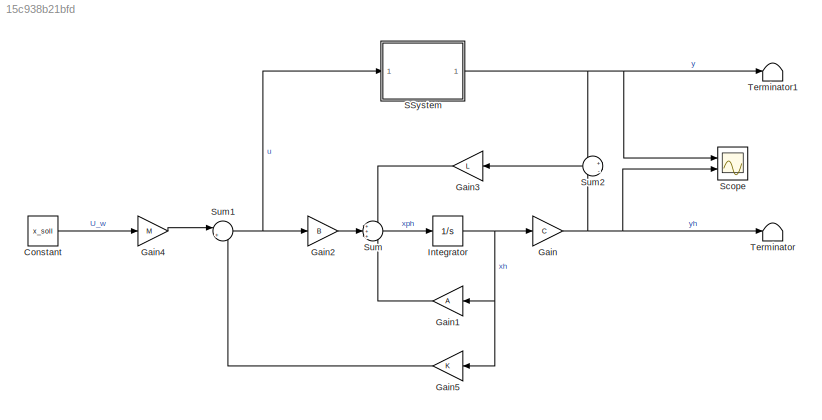
MODEL slx_15c938b21bfd
KIND model
BLOCK [Constant] Constant
  Value = x_soll
BLOCK [Gain] Gain
  Gain = C
  Multiplication = Matrix(K*u)
  OutDataTypeStr = Inherit: Inherit via internal rule
  ParamDataTypeStr = Inherit: Inherit via internal rule
  SaturateOnIntegerOverflow = off
BLOCK [Gain] Gain1
  Gain = A
  Multiplication = Matrix(K*u)
  OutDataTypeStr = Inherit: Inherit via internal rule
  ParamDataTypeStr = Inherit: Inherit via internal rule
  SaturateOnIntegerOverflow = off
BLOCK [Gain] Gain2
  Gain = B
  Multiplication = Matrix(K*u)
  OutDataTypeStr = Inherit: Inherit via internal rule
  ParamDataTypeStr = Inherit: Inherit via internal rule
  SaturateOnIntegerOverflow = off
BLOCK [Gain] Gain3
  Gain = L
  Multiplication = Matrix(K*u)
  OutDataTypeStr = Inherit: Inherit via internal rule
  ParamDataTypeStr = Inherit: Inherit via internal rule
  SaturateOnIntegerOverflow = off
BLOCK [Gain] Gain4
  Gain = M
  Multiplication = Matrix(K*u)
  OutDataTypeStr = Inherit: Inherit via internal rule
  ParamDataTypeStr = Inherit: Inherit via internal rule
  SaturateOnIntegerOverflow = off
BLOCK [Gain] Gain5
  Gain = K
  Multiplication = Matrix(K*u)
  OutDataTypeStr = Inherit: Inherit via internal rule
  ParamDataTypeStr = Inherit: Inherit via internal rule
  SaturateOnIntegerOverflow = off
BLOCK [Integrator] Integrator
  InitialCondition = x_lin_i
  Ports = [1, 1]
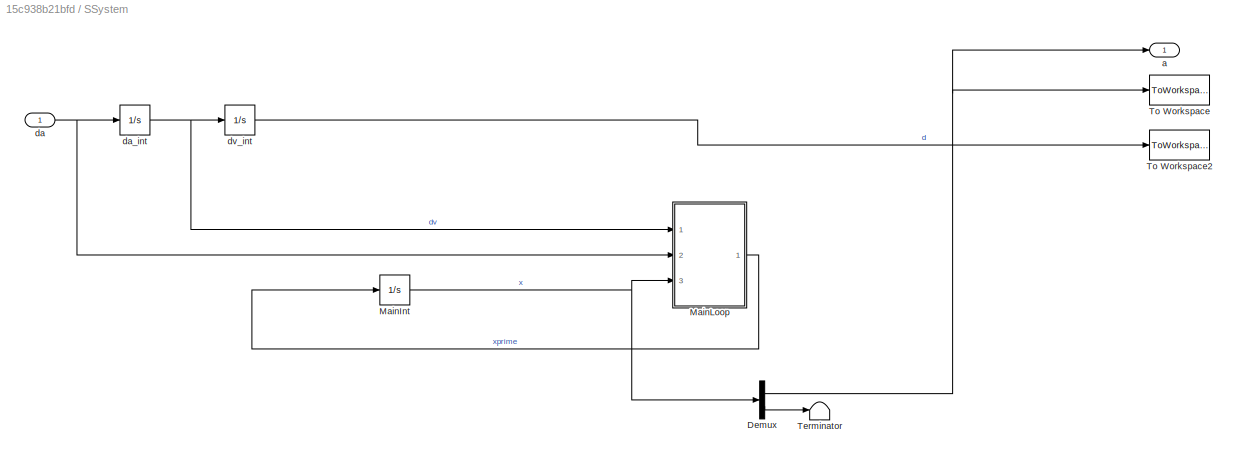
BLOCK [SubSystem] SSystem
  FunctionWithSeparateData = off
  MaskHideContents = off
  MinAlgLoopOccurrences = off
  Opaque = off
  Ports = [1, 1]
  PropExecContextOutsideSubsystem = off
  RTWSystemCode = Auto
  RequestExecContextInheritance = off
BLOCK [Demux] SSystem/Demux
  DisplayOption = bar
  Outputs = 2
  Ports = [1, 2]
BLOCK [Integrator] SSystem/MainInt
  InitialCondition = x_initial
  Ports = [1, 1]
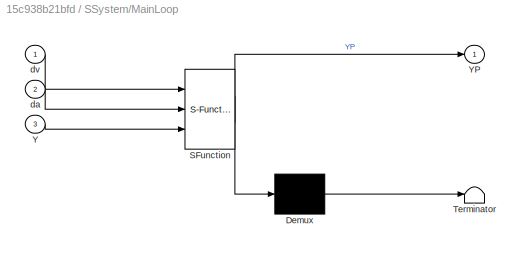
BLOCK [SubSystem] SSystem/MainLoop
  ErrorFcn = Stateflow.Translate.translate
  FunctionWithSeparateData = off
  MaskDescription = Embedded MATLAB block
  MaskDisplay = bgColor = Simulink.Root.ColorString2Rgb(get_param(gcbh, 'BackgroundColor')); image(imread('private/eml_membrane_16.png','png','BackgroundColor',bgColor(1:3)),'center'); disp([10 10 'MainLoop']);
  MaskHideContents = off
  MaskIconFrame = on
  MaskIconOpaque = off
  MaskIconRotate = none
  MaskIconUnits = normalized
  MaskPortRotate = default
  MaskSelfModifiable = on
  MaskType = Stateflow
  MinAlgLoopOccurrences = off
  Opaque = off
  PermitHierarchicalResolution = ParametersOnly
  Ports = [3, 1]
  PropExecContextOutsideSubsystem = off
  RTWSystemCode = Auto
  RequestExecContextInheritance = off
  SFBlockType = MATLAB Function
  TreatAsAtomicUnit = on
BLOCK [Demux] SSystem/MainLoop/ Demux 
  Outputs = 1
  Ports = [1, 1]
BLOCK [S-Function] SSystem/MainLoop/ SFunction 
  EnableBusSupport = on
  FunctionName = sf_sfun
  PortCounts = [3 2]
  Ports = [3, 2]
  SFunctionDeploymentMode = off
  Tag = Stateflow S-Function StateSpace_Sim_2012a 2
BLOCK [Terminator] SSystem/MainLoop/ Terminator 
BLOCK [Inport] SSystem/MainLoop/Y
  IconDisplay = Port number
  Port = 3
BLOCK [Outport] SSystem/MainLoop/YP
  IconDisplay = Port number
BLOCK [Inport] SSystem/MainLoop/da
  IconDisplay = Port number
  Port = 2
BLOCK [Inport] SSystem/MainLoop/dv
  IconDisplay = Port number
BLOCK [Terminator] SSystem/Terminator
BLOCK [ToWorkspace] SSystem/To Workspace
  FixptAsFi = on
  MaxDataPoints = inf
  Ports = [1]
  SampleTime = -1
  SaveFormat = Timeseries
  VariableName = a
BLOCK [ToWorkspace] SSystem/To Workspace2
  FixptAsFi = on
  MaxDataPoints = inf
  Ports = [1]
  SampleTime = -1
  SaveFormat = Timeseries
  VariableName = d
BLOCK [Outport] SSystem/a
  IconDisplay = Port number
BLOCK [Inport] SSystem/da
  IconDisplay = Port number
BLOCK [Integrator] SSystem/da_int
  InitialCondition = d_initial(2)
  Ports = [1, 1]
BLOCK [Integrator] SSystem/dv_int
  InitialCondition = d_initial(1)
  Ports = [1, 1]
BLOCK [Scope] Scope
  DataFormat = StructureWithTime
  Decimation = 1
  Floating = off
  Grid = on
  LimitDataPoints = off
  MaxDataPoints = 5000
  NumInputPorts = 2
  Ports = [2]
  SampleInput = off
  SampleTime = -1
  SaveName = ScopeData1
  SaveToWorkspace = off
  ShowLegends = on
  TickLabels = OneTimeTick
  TimeRange = auto
  YMax = 3.90044~5
  YMin = -3.68804~-5
  ZoomMode = on
BLOCK [Sum] Sum
  IconShape = round
  InputSameDT = off
  Inputs = +++
  OutDataTypeStr = Inherit: Inherit via internal rule
  Ports = [3, 1]
  SaturateOnIntegerOverflow = off
BLOCK [Sum] Sum1
  IconShape = round
  InputSameDT = off
  Inputs = |+-
  OutDataTypeStr = Inherit: Inherit via internal rule
  Ports = [2, 1]
  SaturateOnIntegerOverflow = off
BLOCK [Sum] Sum2
  IconShape = round
  InputSameDT = off
  Inputs = +|-
  OutDataTypeStr = Inherit: Inherit via internal rule
  Ports = [2, 1]
  SaturateOnIntegerOverflow = off
BLOCK [Terminator] Terminator
BLOCK [Terminator] Terminator1
LINE Constant:1 -> Gain4:1
LINE Gain1:1 -> Sum:3
LINE Gain2:1 -> Sum:2
LINE Gain3:1 -> Sum:1
LINE Gain4:1 -> Sum1:1
LINE Gain5:1 -> Sum1:2
NET Gain:1 -> Scope:2, Sum2:2, Terminator:1
NET Integrator:1 -> Gain1:1, Gain5:1, Gain:1
NET SSystem/Demux:1 -> SSystem/To Workspace:1, SSystem/a:1
LINE SSystem/Demux:2 -> SSystem/Terminator:1
NET SSystem/MainInt:1 -> SSystem/Demux:1, SSystem/MainLoop:3
LINE SSystem/MainLoop:1 -> SSystem/MainInt:1
NET SSystem/da:1 -> SSystem/MainLoop:2, SSystem/da_int:1
NET SSystem/da_int:1 -> SSystem/MainLoop:1, SSystem/dv_int:1
LINE SSystem/dv_int:1 -> SSystem/To Workspace2:1
NET SSystem:1 -> Scope:1, Sum2:1, Terminator1:1
NET Sum1:1 -> Gain2:1, SSystem:1
LINE Sum2:1 -> Gain3:1
LINE Sum:1 -> Integrator:1
note: NET lines group one-source signal fan-out (src -> all destinations, sorted); 1:1 wires keep LINE
